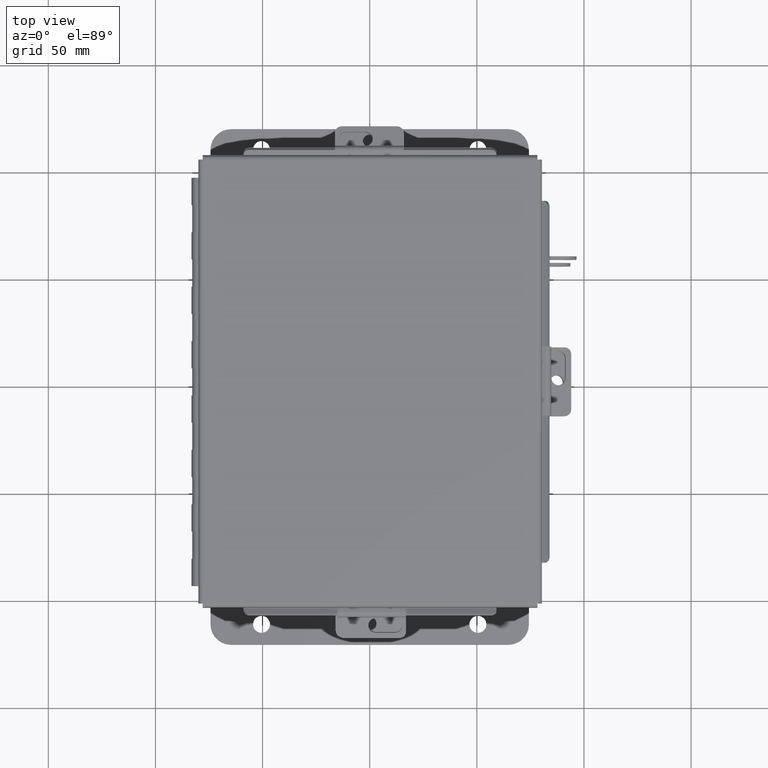
[diagram: clean part render]
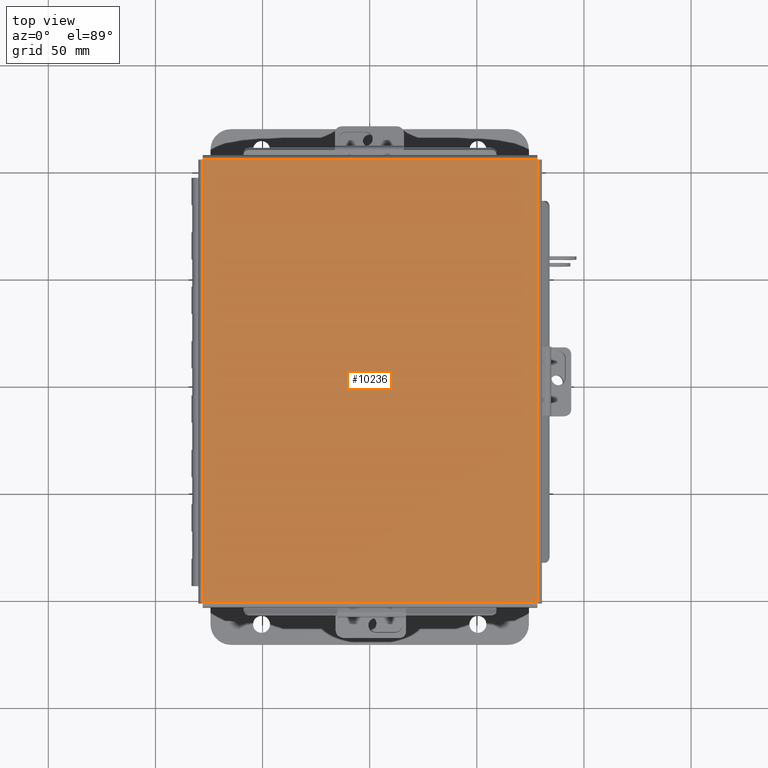
[diagram: same view with one face highlighted and labeled with its STEP entity id]
A machine part, top view. The second image highlights one B-rep face of the part: STEP entity #10236.
In plain terms, the highlighted planar face has unit normal (-0, -0, 1).
Its self-contained STEP definition (entity closure, byte-faithful):
#8 = VERTEX_POINT ( 'NONE', #118 ) ;
#118 = CARTESIAN_POINT ( 'NONE',  ( -3.068549999999999200, 4.068550000000001900, -0.07469999999999994700 ) ) ;
#172 = CARTESIAN_POINT ( 'NONE',  ( -3.068549999999998800, -4.068549999999999200, -0.07469999999999994700 ) ) ;
#1024 = EDGE_CURVE ( 'NONE', #8243, #8, #6371, .T. ) ;
#1179 = DIRECTION ( 'NONE',  ( 1.000000000000000000, 0.0000000000000000000, 0.0000000000000000000 ) ) ;
#1782 = CARTESIAN_POINT ( 'NONE',  ( 0.0000000000000000000, 0.0000000000000000000, -0.07470000000000000300 ) ) ;
#2160 = CARTESIAN_POINT ( 'NONE',  ( 3.068550000000001000, 4.068550000000001900, -0.07469999999999994700 ) ) ;
#2260 = CARTESIAN_POINT ( 'NONE',  ( 3.068550000000001400, -4.068549999999998300, -0.07469999999999994700 ) ) ;
#2414 = LINE ( 'NONE', #2651, #5959 ) ;
#2651 = CARTESIAN_POINT ( 'NONE',  ( 3.074478932188136100, -4.068549999999998300, -0.07469999999999994700 ) ) ;
#2983 = DIRECTION ( 'NONE',  ( -1.000000000000000000, 0.0000000000000000000, -0.0000000000000000000 ) ) ;
#3693 = EDGE_CURVE ( 'NONE', #12885, #15036, #12037, .T. ) ;
#4079 = ORIENTED_EDGE ( 'NONE', *, *, #13031, .T. ) ;
#4463 = AXIS2_PLACEMENT_3D ( 'NONE', #1782, #10064, #2983 ) ;
#4939 = EDGE_LOOP ( 'NONE', ( #4079, #13894, #11442, #6480 ) ) ;
#5959 = VECTOR ( 'NONE', #9738, 39.37007874015748100 ) ;
#6018 = VECTOR ( 'NONE', #13768, 39.37007874015748100 ) ;
#6371 = LINE ( 'NONE', #9019, #6018 ) ;
#6480 = ORIENTED_EDGE ( 'NONE', *, *, #1024, .T. ) ;
#6556 = VECTOR ( 'NONE', #1179, 39.37007874015748100 ) ;
#7092 = CARTESIAN_POINT ( 'NONE',  ( -3.074478932188133800, 4.068550000000001900, -0.07469999999999994700 ) ) ;
#7650 = CARTESIAN_POINT ( 'NONE',  ( 3.068550000000001000, 4.074478932188137400, -0.07469999999999994700 ) ) ;
#8243 = VERTEX_POINT ( 'NONE', #172 ) ;
#8899 = VECTOR ( 'NONE', #11232, 39.37007874015748100 ) ;
#9019 = CARTESIAN_POINT ( 'NONE',  ( -3.068549999999998800, -4.074478932188133800, -0.07469999999999994700 ) ) ;
#9095 = EDGE_CURVE ( 'NONE', #15036, #8243, #2414, .T. ) ;
#9738 = DIRECTION ( 'NONE',  ( -1.000000000000000000, 0.0000000000000000000, 0.0000000000000000000 ) ) ;
#10014 = PLANE ( 'NONE',  #4463 ) ;
#10064 = DIRECTION ( 'NONE',  ( 0.0000000000000000000, 0.0000000000000000000, -1.000000000000000000 ) ) ;
#10236 = ADVANCED_FACE ( 'NONE', ( #15320 ), #10014, .T. ) ;
#11232 = DIRECTION ( 'NONE',  ( -0.0000000000000000000, -1.000000000000000000, -0.0000000000000000000 ) ) ;
#11442 = ORIENTED_EDGE ( 'NONE', *, *, #9095, .T. ) ;
#12037 = LINE ( 'NONE', #7650, #8899 ) ;
#12885 = VERTEX_POINT ( 'NONE', #2160 ) ;
#13031 = EDGE_CURVE ( 'NONE', #8, #12885, #13225, .T. ) ;
#13225 = LINE ( 'NONE', #7092, #6556 ) ;
#13768 = DIRECTION ( 'NONE',  ( -0.0000000000000000000, 1.000000000000000000, -0.0000000000000000000 ) ) ;
#13894 = ORIENTED_EDGE ( 'NONE', *, *, #3693, .T. ) ;
#15036 = VERTEX_POINT ( 'NONE', #2260 ) ;
#15320 = FACE_OUTER_BOUND ( 'NONE', #4939, .T. ) ;